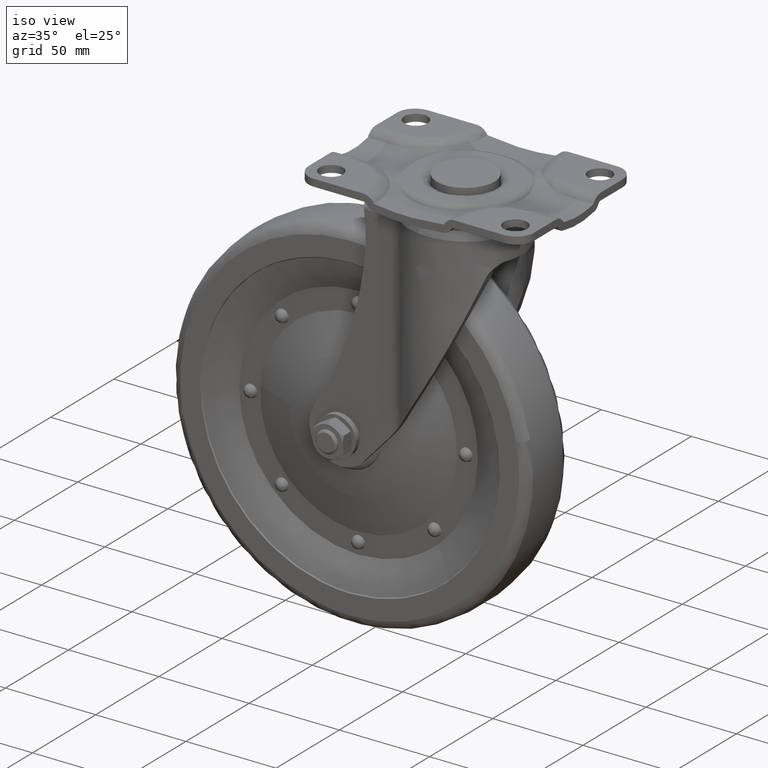
[diagram: clean part render]
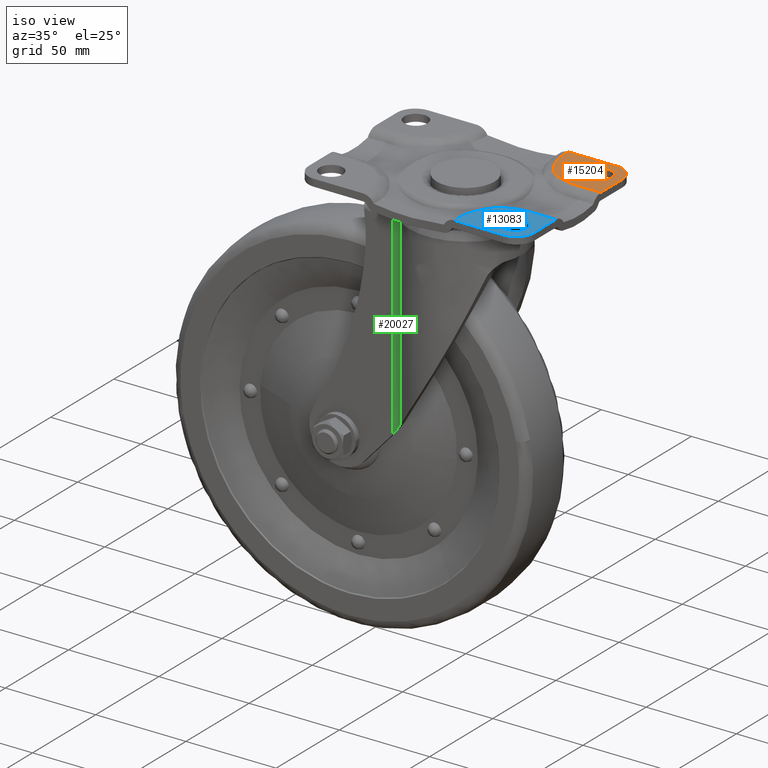
[diagram: same view with three faces highlighted in distinct colors, each labeled with its STEP entity id]
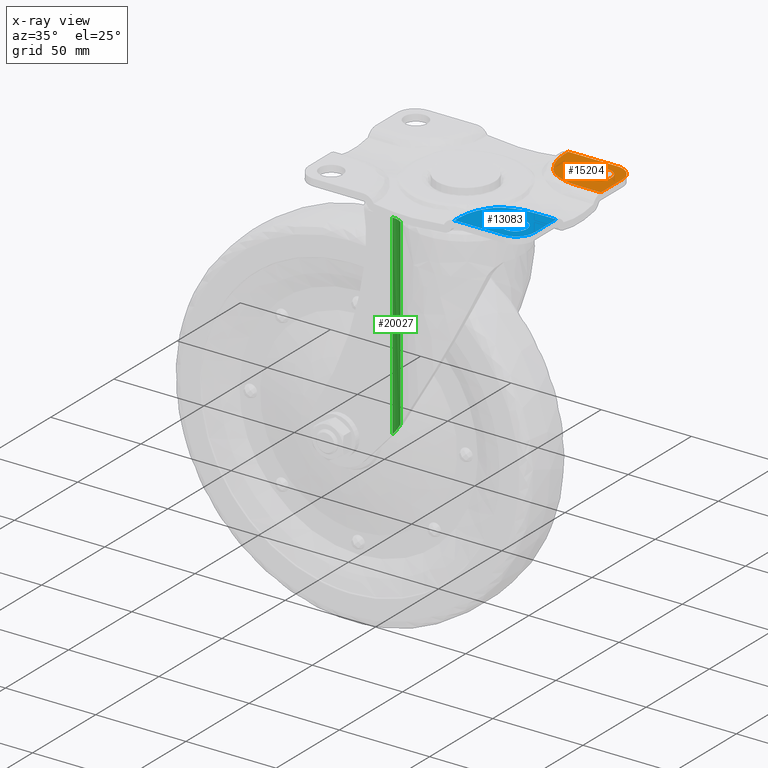
[diagram: x-ray of the same camera — body ghosted, the three highlighted faces saturated]
A machine part, iso view with three faces highlighted in distinct colors.
The next image is the same camera in x-ray (body ghosted, the three faces saturated) — at least one of them is partly hidden behind the body in this view.
Their STEP definitions:

[orange] entity #15204 — the highlighted face is a freeform B-spline surface patch.
#4957=CARTESIAN_POINT('',(51.056722481890560,27.000247500092939,0.270766999999838));
#4958=VERTEX_POINT('',#4957);
#4964=CARTESIAN_POINT('',(57.499999999999993,33.500000000000000,0.270766999999839));
#4965=VERTEX_POINT('',#4964);
#4966=CARTESIAN_POINT('',(51.056722481890560,27.000247500092936,0.270766999999839));
#4967=CARTESIAN_POINT('',(57.500000000000000,27.056477132273866,0.270766999999839));
#4968=CARTESIAN_POINT('',(57.499999999999993,33.500000000000000,0.270766999999839));
#4976=(BOUNDED_CURVE()B_SPLINE_CURVE(2,(#4966,#4967,#4968),.UNSPECIFIED.,.F.,.U.)B_SPLINE_CURVE_WITH_KNOTS((3,3),(0.251539894366183,0.500000000000000),.UNSPECIFIED.)CURVE()GEOMETRIC_REPRESENTATION_ITEM()RATIONAL_B_SPLINE_CURVE((0.996414028028211,0.708910879656723,1.0))REPRESENTATION_ITEM(''));
#4977=EDGE_CURVE('',#4958,#4965,#4976,.T.);
#4979=CARTESIAN_POINT('',(50.943277518109440,39.999752499907061,0.270766999999838));
#4980=VERTEX_POINT('',#4979);
#4981=CARTESIAN_POINT('',(57.499999999999993,33.500000000000000,0.270766999999839));
#4982=CARTESIAN_POINT('',(57.500000000000000,40.0,0.270766999999839));
#4983=CARTESIAN_POINT('',(51.0,40.0,0.270766999999839));
#4984=CARTESIAN_POINT('',(50.971638219089847,39.999999999999993,0.270766999999838));
#4985=CARTESIAN_POINT('',(50.943277518109433,39.999752499907061,0.270766999999838));
#4993=(BOUNDED_CURVE()B_SPLINE_CURVE(2,(#4981,#4982,#4983,#4984,#4985),.UNSPECIFIED.,.F.,.U.)B_SPLINE_CURVE_WITH_KNOTS((3,2,3),(0.500000000000000,0.750000000000000,0.751539894366183),.UNSPECIFIED.)CURVE()GEOMETRIC_REPRESENTATION_ITEM()RATIONAL_B_SPLINE_CURVE((1.0,0.707106781186547,1.0,0.998195901529824,0.996414028028211))REPRESENTATION_ITEM(''));
#4994=EDGE_CURVE('',#4965,#4980,#4993,.T.);
#5070=CARTESIAN_POINT('',(44.500000000000000,33.500000000000000,0.270766999999839));
#5071=VERTEX_POINT('',#5070);
#5072=CARTESIAN_POINT('',(50.943277518109433,39.999752499907061,0.270766999999839));
#5073=CARTESIAN_POINT('',(44.499999999999993,39.943522867726152,0.270766999999839));
#5074=CARTESIAN_POINT('',(44.500000000000000,33.500000000000000,0.270766999999839));
#5082=(BOUNDED_CURVE()B_SPLINE_CURVE(2,(#5072,#5073,#5074),.UNSPECIFIED.,.F.,.U.)B_SPLINE_CURVE_WITH_KNOTS((3,3),(0.751539894366183,1.0),.UNSPECIFIED.)CURVE()GEOMETRIC_REPRESENTATION_ITEM()RATIONAL_B_SPLINE_CURVE((0.996414028028210,0.708910879656723,1.0))REPRESENTATION_ITEM(''));
#5083=EDGE_CURVE('',#4980,#5071,#5082,.T.);
#5085=CARTESIAN_POINT('',(44.500000000000000,33.500000000000000,0.270766999999839));
#5086=CARTESIAN_POINT('',(44.500000000000000,27.000000000000014,0.270766999999839));
#5087=CARTESIAN_POINT('',(51.0,27.0,0.270766999999839));
#5088=CARTESIAN_POINT('',(51.028361780910167,27.000000000000007,0.270766999999839));
#5089=CARTESIAN_POINT('',(51.056722481890567,27.000247500092939,0.270766999999839));
#5097=(BOUNDED_CURVE()B_SPLINE_CURVE(2,(#5085,#5086,#5087,#5088,#5089),.UNSPECIFIED.,.F.,.U.)B_SPLINE_CURVE_WITH_KNOTS((3,2,3),(0.0,0.250000000000000,0.251539894366183),.UNSPECIFIED.)CURVE()GEOMETRIC_REPRESENTATION_ITEM()RATIONAL_B_SPLINE_CURVE((1.0,0.707106781186547,1.0,0.998195901529824,0.996414028028211))REPRESENTATION_ITEM(''));
#5098=EDGE_CURVE('',#5071,#4958,#5097,.T.);
#14623=CARTESIAN_POINT('',(62.500000000000000,35.0,0.270766999999839));
#14624=VERTEX_POINT('',#14623);
#14630=CARTESIAN_POINT('',(62.500000000000000,17.778358479652951,0.270766999999808));
#14631=VERTEX_POINT('',#14630);
#14632=CARTESIAN_POINT('',(62.500000000000000,17.778358479652951,0.270766999999808));
#14633=CARTESIAN_POINT('',(62.500000000000000,35.0,0.270766999999839));
#14634=QUASI_UNIFORM_CURVE('',1,(#14632,#14633),.UNSPECIFIED.,.F.,.U.);
#14635=EDGE_CURVE('',#14631,#14624,#14634,.T.);
#14669=CARTESIAN_POINT('',(52.500000000000000,45.0,0.270766999999839));
#14670=VERTEX_POINT('',#14669);
#14676=CARTESIAN_POINT('',(62.500000000000000,35.0,0.270766999999839));
#14677=CARTESIAN_POINT('',(62.500000000000000,45.000000000000014,0.270766999999838));
#14678=CARTESIAN_POINT('',(52.500000000000000,45.000000000000007,0.270766999999839));
#14686=(BOUNDED_CURVE()B_SPLINE_CURVE(2,(#14676,#14677,#14678),.UNSPECIFIED.,.F.,.U.)CURVE()GEOMETRIC_REPRESENTATION_ITEM()QUASI_UNIFORM_CURVE()RATIONAL_B_SPLINE_CURVE((1.0,0.707106781186548,1.0))REPRESENTATION_ITEM(''));
#14687=EDGE_CURVE('',#14624,#14670,#14686,.T.);
#14699=CARTESIAN_POINT('',(25.362136062153350,45.0,0.270766999999808));
#14700=VERTEX_POINT('',#14699);
#14701=CARTESIAN_POINT('',(52.500000000000000,45.0,0.270766999999839));
#14702=CARTESIAN_POINT('',(25.362136062153350,45.0,0.270766999999808));
#14703=QUASI_UNIFORM_CURVE('',1,(#14701,#14702),.UNSPECIFIED.,.F.,.U.);
#14704=EDGE_CURVE('',#14670,#14700,#14703,.T.);
#14812=CARTESIAN_POINT('',(37.332034002519052,20.326663851140299,0.270766999999808));
#14813=VERTEX_POINT('',#14812);
#14828=CARTESIAN_POINT('',(49.000605015543201,17.778358479652901,0.270766999999808));
#14829=VERTEX_POINT('',#14828);
#14843=CARTESIAN_POINT('',(37.332034002519052,20.326663851140250,0.270766999999808));
#14844=CARTESIAN_POINT('',(37.795497823927207,20.128824963173940,0.270766999999808));
#14845=CARTESIAN_POINT('',(38.261875680192126,19.938736079477160,0.270766999999810));
#14846=CARTESIAN_POINT('',(39.201969906470453,19.578075413175458,0.270766999999810));
#14847=CARTESIAN_POINT('',(39.675680084500307,19.407487162716968,0.270766999999810));
#14848=CARTESIAN_POINT('',(40.392548979131448,19.168369562713131,0.270766999999810));
#14849=CARTESIAN_POINT('',(40.632705698431103,19.091407608393819,0.270766999999810));
#14850=CARTESIAN_POINT('',(41.113722977102512,18.943786707474370,0.270766999999810));
#14851=CARTESIAN_POINT('',(41.354725433468893,18.873076140729250,0.270766999999810));
#14852=CARTESIAN_POINT('',(42.079253871598723,18.670492789019129,0.270766999999810));
#14853=CARTESIAN_POINT('',(42.564303007522803,18.548181441760850,0.270766999999810));
#14854=CARTESIAN_POINT('',(44.025758305156693,18.220844505472680,0.270766999999810));
#14855=CARTESIAN_POINT('',(45.008482312587553,18.055478518774621,0.270766999999810));
#14856=CARTESIAN_POINT('',(46.991378237865383,17.834273941135880,0.270766999999810));
#14857=CARTESIAN_POINT('',(47.991537910097193,17.778358479652720,0.270766999999808));
#14858=CARTESIAN_POINT('',(49.000605015543201,17.778358479652901,0.270766999999808));
#14859=B_SPLINE_CURVE_WITH_KNOTS('',3,(#14843,#14844,#14845,#14846,#14847,#14848,#14849,#14850,#14851,#14852,#14853,#14854,#14855,#14856,#14857,#14858),.UNSPECIFIED.,.F.,.U.,(4,2,2,2,2,2,2,4),(0.0,0.125000000000000,0.250000000000000,0.312500000000000,0.375000000000000,0.500000000000000,0.750000000000000,1.0),.UNSPECIFIED.);
#14860=EDGE_CURVE('',#14813,#14829,#14859,.T.);
#14953=CARTESIAN_POINT('',(30.737506021626601,25.489937306058451,0.270766999999809));
#14954=VERTEX_POINT('',#14953);
#14970=CARTESIAN_POINT('',(30.737506021626601,25.489937306058451,0.270766999999809));
#14971=CARTESIAN_POINT('',(30.945995480822670,25.200695248073629,0.270766999999808));
#14972=CARTESIAN_POINT('',(31.163448865777209,24.918790634215540,0.270766999999810));
#14973=CARTESIAN_POINT('',(31.504228316286799,24.507884067228868,0.270766999999810));
#14974=CARTESIAN_POINT('',(31.620252411317669,24.372905067637902,0.270766999999810));
#14975=CARTESIAN_POINT('',(31.857325117692518,24.107059899006419,0.270766999999810));
#14976=CARTESIAN_POINT('',(31.978562448117771,23.976004651679538,0.270766999999810));
#14977=CARTESIAN_POINT('',(32.594349794318447,23.334675435995820,0.270766999999810));
#14978=CARTESIAN_POINT('',(33.118881304318421,22.865106630202352,0.270766999999810));
#14979=CARTESIAN_POINT('',(34.228459617263098,22.008475341891749,0.270766999999810));
#14980=CARTESIAN_POINT('',(34.813423937875697,21.621300403272620,0.270766999999810));
#14981=CARTESIAN_POINT('',(35.731251278020437,21.095593107255940,0.270766999999810));
#14982=CARTESIAN_POINT('',(36.043931123343548,20.929497916188321,0.270766999999810));
#14983=CARTESIAN_POINT('',(36.681693979633529,20.614399525869960,0.270766999999810));
#14984=CARTESIAN_POINT('',(37.004918731570768,20.466299607917549,0.270766999999807));
#14985=CARTESIAN_POINT('',(37.332034002519052,20.326663851140299,0.270766999999808));
#14986=B_SPLINE_CURVE_WITH_KNOTS('',3,(#14970,#14971,#14972,#14973,#14974,#14975,#14976,#14977,#14978,#14979,#14980,#14981,#14982,#14983,#14984,#14985),.UNSPECIFIED.,.F.,.U.,(4,2,2,2,2,2,2,4),(0.0,0.124999999999999,0.187499999999999,0.249999999999999,0.499999999999999,0.749999999999999,0.875000000000000,1.0),.UNSPECIFIED.);
#14987=EDGE_CURVE('',#14954,#14813,#14986,.T.);
#15090=CARTESIAN_POINT('',(25.362136062153350,41.364142405412203,0.270766999999808));
#15091=VERTEX_POINT('',#15090);
#15107=CARTESIAN_POINT('',(25.362136062153350,41.364142405412203,0.270766999999808));
#15108=CARTESIAN_POINT('',(25.362136062153141,39.934674981561663,0.270766999999808));
#15109=CARTESIAN_POINT('',(25.479870982809761,38.516919594063367,0.270766999999810));
#15110=CARTESIAN_POINT('',(25.746202977526430,36.935262920734523,0.270766999999810));
#15111=CARTESIAN_POINT('',(25.777662452465218,36.759709018912922,0.270766999999810));
#15112=CARTESIAN_POINT('',(25.844333218519331,36.408974438500380,0.270766999999810));
#15113=CARTESIAN_POINT('',(25.879575490130740,36.233659171841893,0.270766999999810));
#15114=CARTESIAN_POINT('',(25.990562467079990,35.710085456439671,0.270766999999810));
#15115=CARTESIAN_POINT('',(26.071638829235962,35.363752603431642,0.270766999999810));
#15116=CARTESIAN_POINT('',(26.335680239565530,34.332733150538530,0.270766999999810));
#15117=CARTESIAN_POINT('',(26.539445438901112,33.656020989969562,0.270766999999810));
#15118=CARTESIAN_POINT('',(27.231020272392769,31.656662260151680,0.270766999999810));
#15119=CARTESIAN_POINT('',(27.799272320055390,30.364856002588681,0.270766999999810));
#15120=CARTESIAN_POINT('',(28.634451367111168,28.797969000570411,0.270766999999810));
#15121=CARTESIAN_POINT('',(28.807754410316051,28.486916683038050,0.270766999999810));
#15122=CARTESIAN_POINT('',(29.166342243384179,27.869723211492381,0.270766999999810));
#15123=CARTESIAN_POINT('',(29.351016677740290,27.564626167673548,0.270766999999810));
#15124=CARTESIAN_POINT('',(29.920280175877409,26.659247834543031,0.270766999999810));
#15125=CARTESIAN_POINT('',(30.320169068463589,26.068918131591190,0.270766999999808));
#15126=CARTESIAN_POINT('',(30.737506021626551,25.489937306058401,0.270766999999808));
#15127=B_SPLINE_CURVE_WITH_KNOTS('',3,(#15107,#15108,#15109,#15110,#15111,#15112,#15113,#15114,#15115,#15116,#15117,#15118,#15119,#15120,#15121,#15122,#15123,#15124,#15125,#15126),.UNSPECIFIED.,.F.,.U.,(4,2,2,2,2,2,2,2,2,4),(0.0,0.250000000000009,0.281250000000009,0.312500000000010,0.375000000000009,0.500000000000008,0.750000000000004,0.812500000000003,0.875000000000002,1.0),.UNSPECIFIED.);
#15128=EDGE_CURVE('',#15091,#14954,#15127,.T.);
#15149=CARTESIAN_POINT('',(49.000605015543201,17.778358479652901,0.270766999999808));
#15150=CARTESIAN_POINT('',(62.500000000000000,17.778358479652951,0.270766999999808));
#15151=QUASI_UNIFORM_CURVE('',1,(#15149,#15150),.UNSPECIFIED.,.F.,.U.);
#15152=EDGE_CURVE('',#14829,#14631,#15151,.T.);
#15172=CARTESIAN_POINT('',(25.362136062153350,45.0,0.270766999999808));
#15173=CARTESIAN_POINT('',(25.362136062153350,41.364142405412203,0.270766999999808));
#15174=QUASI_UNIFORM_CURVE('',1,(#15172,#15173),.UNSPECIFIED.,.F.,.U.);
#15175=EDGE_CURVE('',#14700,#15091,#15174,.T.);
#15183=CARTESIAN_POINT('',(23.507099830438300,46.359720941180512,0.270766999999808));
#15184=CARTESIAN_POINT('',(64.355037227830181,46.359720941180512,0.270766999999808));
#15185=CARTESIAN_POINT('',(23.507099830438300,16.418636808331058,0.270766999999808));
#15186=CARTESIAN_POINT('',(64.355037227830181,16.418636808331058,0.270766999999808));
#15187=B_SPLINE_SURFACE_WITH_KNOTS('',1,1,((#15183,#15185),(#15184,#15186)),.UNSPECIFIED.,.F.,.F.,.U.,(2,2),(2,2),(0.0,40.847937397391888),(0.0,29.941084132849451),.UNSPECIFIED.);
#15188=ORIENTED_EDGE('',*,*,#14704,.T.);
#15189=ORIENTED_EDGE('',*,*,#15175,.T.);
#15190=ORIENTED_EDGE('',*,*,#15128,.T.);
#15191=ORIENTED_EDGE('',*,*,#14987,.T.);
#15192=ORIENTED_EDGE('',*,*,#14860,.T.);
#15193=ORIENTED_EDGE('',*,*,#15152,.T.);
#15194=ORIENTED_EDGE('',*,*,#14635,.T.);
#15195=ORIENTED_EDGE('',*,*,#14687,.T.);
#15196=EDGE_LOOP('',(#15188,#15189,#15190,#15191,#15192,#15193,#15194,#15195));
#15197=FACE_OUTER_BOUND('',#15196,.T.);
#15198=ORIENTED_EDGE('',*,*,#4994,.F.);
#15199=ORIENTED_EDGE('',*,*,#4977,.F.);
#15200=ORIENTED_EDGE('',*,*,#5098,.F.);
#15201=ORIENTED_EDGE('',*,*,#5083,.F.);
#15202=EDGE_LOOP('',(#15198,#15199,#15200,#15201));
#15203=FACE_BOUND('',#15202,.T.);
#15204=ADVANCED_FACE('',(#15197,#15203),#15187,.F.);

[blue] entity #13083 — the highlighted face is a freeform B-spline surface patch.
#5139=CARTESIAN_POINT('',(51.056722481890560,-39.999752499907061,0.270766999999838));
#5140=VERTEX_POINT('',#5139);
#5146=CARTESIAN_POINT('',(57.499999999999993,-33.500000000000000,0.270766999999839));
#5147=VERTEX_POINT('',#5146);
#5148=CARTESIAN_POINT('',(51.056722481890560,-39.999752499907068,0.270766999999839));
#5149=CARTESIAN_POINT('',(57.500000000000000,-39.943522867726145,0.270766999999839));
#5150=CARTESIAN_POINT('',(57.499999999999993,-33.500000000000000,0.270766999999839));
#5158=(BOUNDED_CURVE()B_SPLINE_CURVE(2,(#5148,#5149,#5150),.UNSPECIFIED.,.F.,.U.)B_SPLINE_CURVE_WITH_KNOTS((3,3),(0.251539894366183,0.500000000000000),.UNSPECIFIED.)CURVE()GEOMETRIC_REPRESENTATION_ITEM()RATIONAL_B_SPLINE_CURVE((0.996414028028211,0.708910879656723,1.0))REPRESENTATION_ITEM(''));
#5159=EDGE_CURVE('',#5140,#5147,#5158,.T.);
#5161=CARTESIAN_POINT('',(50.943277518109440,-27.000247500092939,0.270766999999838));
#5162=VERTEX_POINT('',#5161);
#5163=CARTESIAN_POINT('',(57.499999999999993,-33.500000000000000,0.270766999999839));
#5164=CARTESIAN_POINT('',(57.500000000000000,-27.000000000000014,0.270766999999839));
#5165=CARTESIAN_POINT('',(51.0,-27.0,0.270766999999839));
#5166=CARTESIAN_POINT('',(50.971638219089847,-27.0,0.270766999999838));
#5167=CARTESIAN_POINT('',(50.943277518109433,-27.000247500092929,0.270766999999838));
#5175=(BOUNDED_CURVE()B_SPLINE_CURVE(2,(#5163,#5164,#5165,#5166,#5167),.UNSPECIFIED.,.F.,.U.)B_SPLINE_CURVE_WITH_KNOTS((3,2,3),(0.500000000000000,0.750000000000000,0.751539894366183),.UNSPECIFIED.)CURVE()GEOMETRIC_REPRESENTATION_ITEM()RATIONAL_B_SPLINE_CURVE((1.0,0.707106781186547,1.0,0.998195901529824,0.996414028028211))REPRESENTATION_ITEM(''));
#5176=EDGE_CURVE('',#5147,#5162,#5175,.T.);
#5252=CARTESIAN_POINT('',(44.500000000000000,-33.500000000000000,0.270766999999839));
#5253=VERTEX_POINT('',#5252);
#5254=CARTESIAN_POINT('',(50.943277518109433,-27.000247500092936,0.270766999999839));
#5255=CARTESIAN_POINT('',(44.499999999999993,-27.056477132273862,0.270766999999839));
#5256=CARTESIAN_POINT('',(44.500000000000000,-33.500000000000000,0.270766999999839));
#5264=(BOUNDED_CURVE()B_SPLINE_CURVE(2,(#5254,#5255,#5256),.UNSPECIFIED.,.F.,.U.)B_SPLINE_CURVE_WITH_KNOTS((3,3),(0.751539894366183,1.0),.UNSPECIFIED.)CURVE()GEOMETRIC_REPRESENTATION_ITEM()RATIONAL_B_SPLINE_CURVE((0.996414028028210,0.708910879656723,1.0))REPRESENTATION_ITEM(''));
#5265=EDGE_CURVE('',#5162,#5253,#5264,.T.);
#5267=CARTESIAN_POINT('',(44.500000000000000,-33.500000000000000,0.270766999999839));
#5268=CARTESIAN_POINT('',(44.500000000000000,-40.0,0.270766999999839));
#5269=CARTESIAN_POINT('',(51.0,-40.0,0.270766999999839));
#5270=CARTESIAN_POINT('',(51.028361780910167,-40.0,0.270766999999839));
#5271=CARTESIAN_POINT('',(51.056722481890567,-39.999752499907061,0.270766999999839));
#5279=(BOUNDED_CURVE()B_SPLINE_CURVE(2,(#5267,#5268,#5269,#5270,#5271),.UNSPECIFIED.,.F.,.U.)B_SPLINE_CURVE_WITH_KNOTS((3,2,3),(0.0,0.250000000000000,0.251539894366183),.UNSPECIFIED.)CURVE()GEOMETRIC_REPRESENTATION_ITEM()RATIONAL_B_SPLINE_CURVE((1.0,0.707106781186547,1.0,0.998195901529824,0.996414028028211))REPRESENTATION_ITEM(''));
#5280=EDGE_CURVE('',#5253,#5140,#5279,.T.);
#11492=CARTESIAN_POINT('',(30.737506412930099,-25.489936763194549,0.270766999999807));
#11493=VERTEX_POINT('',#11492);
#11540=CARTESIAN_POINT('',(25.362136062153301,-41.364142405412949,0.270766999999808));
#11541=VERTEX_POINT('',#11540);
#11555=CARTESIAN_POINT('',(30.737506412930099,-25.489936763194549,0.270766999999807));
#11556=CARTESIAN_POINT('',(30.528555543059490,-25.779818935366961,0.270766999999808));
#11557=CARTESIAN_POINT('',(30.323936159503720,-26.072590656853791,0.270766999999810));
#11558=CARTESIAN_POINT('',(29.925089109989511,-26.662970073147441,0.270766999999810));
#11559=CARTESIAN_POINT('',(29.730722666167139,-26.960765191183601,0.270766999999810));
#11560=CARTESIAN_POINT('',(29.163715681294740,-27.862441327959392,0.270766999999810));
#11561=CARTESIAN_POINT('',(28.807198101639379,-28.474628902122092,0.270766999999810));
#11562=CARTESIAN_POINT('',(27.807817103336600,-30.347344130262510,0.270766999999810));
#11563=CARTESIAN_POINT('',(27.235062330755682,-31.643991783533931,0.270766999999810));
#11564=CARTESIAN_POINT('',(26.709674779522590,-33.164009435406250,0.270766999999810));
#11565=CARTESIAN_POINT('',(26.652891898444668,-33.333939608864142,0.270766999999810));
#11566=CARTESIAN_POINT('',(26.543027218060640,-33.674447833672360,0.270766999999810));
#11567=CARTESIAN_POINT('',(26.383791148149449,-34.186103218429501,0.270766999999810));
#11568=CARTESIAN_POINT('',(26.241166707888429,-34.700426308039390,0.270766999999810));
#11569=CARTESIAN_POINT('',(25.977911759021680,-35.732604550003387,0.270766999999810));
#11570=CARTESIAN_POINT('',(25.831714900331900,-36.425429775565362,0.270766999999810));
#11571=CARTESIAN_POINT('',(25.480387113682301,-38.517919210786857,0.270766999999810));
#11572=CARTESIAN_POINT('',(25.362136062153262,-39.931535685988152,0.270766999999807));
#11573=CARTESIAN_POINT('',(25.362136062153301,-41.364142405412949,0.270766999999808));
#11574=B_SPLINE_CURVE_WITH_KNOTS('',3,(#11555,#11556,#11557,#11558,#11559,#11560,#11561,#11562,#11563,#11564,#11565,#11566,#11567,#11568,#11569,#11570,#11571,#11572,#11573),.UNSPECIFIED.,.F.,.U.,(4,2,2,2,2,2,1,2,2,4),(0.0,0.062500000000000,0.125000000000000,0.250000000000001,0.500000000000001,0.531250000000001,0.562500000000001,0.625000000000002,0.750000000000001,1.0),.UNSPECIFIED.);
#11575=EDGE_CURVE('',#11493,#11541,#11574,.T.);
#11658=CARTESIAN_POINT('',(37.332034823701797,-20.326663311212751,0.270766999999809));
#11659=VERTEX_POINT('',#11658);
#11693=CARTESIAN_POINT('',(37.332034823701797,-20.326663311212751,0.270766999999809));
#11694=CARTESIAN_POINT('',(36.025224079631208,-20.884501788542440,0.270766999999807));
#11695=CARTESIAN_POINT('',(34.796642069252243,-21.570327948035150,0.270766999999810));
#11696=CARTESIAN_POINT('',(33.536967001100187,-22.542267726239139,0.270766999999810));
#11697=CARTESIAN_POINT('',(33.398700301699442,-22.653037768076182,0.270766999999810));
#11698=CARTESIAN_POINT('',(33.125663135869409,-22.880297933530692,0.270766999999810));
#11699=CARTESIAN_POINT('',(32.990724461153171,-22.996951831320310,0.270766999999810));
#11700=CARTESIAN_POINT('',(32.593946343668058,-23.353254106403391,0.270766999999810));
#11701=CARTESIAN_POINT('',(32.339383845897743,-23.599851737918979,0.270766999999810));
#11702=CARTESIAN_POINT('',(31.604738625740431,-24.366080674971482,0.270766999999810));
#11703=CARTESIAN_POINT('',(31.153870829102459,-24.912305181901989,0.270766999999808));
#11704=CARTESIAN_POINT('',(30.737506412930198,-25.489936763194649,0.270766999999808));
#11705=B_SPLINE_CURVE_WITH_KNOTS('',3,(#11693,#11694,#11695,#11696,#11697,#11698,#11699,#11700,#11701,#11702,#11703,#11704),.UNSPECIFIED.,.F.,.U.,(4,2,2,2,2,4),(0.0,0.500000000000001,0.562500000000001,0.625000000000001,0.750000000000001,1.0),.UNSPECIFIED.);
#11706=EDGE_CURVE('',#11659,#11493,#11705,.T.);
#11799=CARTESIAN_POINT('',(49.000605059795006,-17.778358396640002,0.270766999999808));
#11800=VERTEX_POINT('',#11799);
#11832=CARTESIAN_POINT('',(49.000605059795006,-17.778358396640002,0.270766999999808));
#11833=CARTESIAN_POINT('',(48.746814202355772,-17.778358396640002,0.270766999999808));
#11834=CARTESIAN_POINT('',(48.493083642589554,-17.781894506141541,0.270766999999810));
#11835=CARTESIAN_POINT('',(47.985743924130993,-17.796086195236349,0.270766999999810));
#11836=CARTESIAN_POINT('',(47.732340931066076,-17.806743441139179,0.270766999999810));
#11837=CARTESIAN_POINT('',(46.975297644817807,-17.849216985584139,0.270766999999810));
#11838=CARTESIAN_POINT('',(46.473909129949291,-17.891557236191709,0.270766999999810));
#11839=CARTESIAN_POINT('',(44.979426084822663,-18.059640086005309,0.270766999999810));
#11840=CARTESIAN_POINT('',(43.996032689711193,-18.226523814407830,0.270766999999810));
#11841=CARTESIAN_POINT('',(42.053600198624942,-18.663574376966771,0.270766999999810));
#11842=CARTESIAN_POINT('',(41.094609401994028,-18.933946041745060,0.270766999999810));
#11843=CARTESIAN_POINT('',(39.672438051689070,-19.408692465885569,0.270766999999810));
#11844=CARTESIAN_POINT('',(39.201087009215492,-19.578417348689971,0.270766999999810));
#11845=CARTESIAN_POINT('',(38.263186447536761,-19.938229689001929,0.270766999999810));
#11846=CARTESIAN_POINT('',(37.796641513449678,-20.128336591340560,0.270766999999807));
#11847=CARTESIAN_POINT('',(37.332034823701797,-20.326663311212751,0.270766999999808));
#11848=B_SPLINE_CURVE_WITH_KNOTS('',3,(#11832,#11833,#11834,#11835,#11836,#11837,#11838,#11839,#11840,#11841,#11842,#11843,#11844,#11845,#11846,#11847),.UNSPECIFIED.,.F.,.U.,(4,2,2,2,2,2,2,4),(0.0,0.062500000000001,0.125000000000002,0.250000000000001,0.500000000000001,0.750000000000000,0.875000000000000,1.0),.UNSPECIFIED.);
#11849=EDGE_CURVE('',#11800,#11659,#11848,.T.);
#12700=CARTESIAN_POINT('',(25.362136062153350,-45.0,0.270766999999808));
#12701=VERTEX_POINT('',#12700);
#12715=CARTESIAN_POINT('',(25.362136062153301,-41.364142405412949,0.270766999999808));
#12716=CARTESIAN_POINT('',(25.362136062153350,-45.0,0.270766999999808));
#12717=QUASI_UNIFORM_CURVE('',1,(#12715,#12716),.UNSPECIFIED.,.F.,.U.);
#12718=EDGE_CURVE('',#11541,#12701,#12717,.T.);
#12738=CARTESIAN_POINT('',(62.500000000000000,-17.778358396640002,0.270766999999808));
#12739=VERTEX_POINT('',#12738);
#12740=CARTESIAN_POINT('',(62.500000000000000,-17.778358396640002,0.270766999999808));
#12741=CARTESIAN_POINT('',(49.000605059795006,-17.778358396640002,0.270766999999808));
#12742=QUASI_UNIFORM_CURVE('',1,(#12740,#12741),.UNSPECIFIED.,.F.,.U.);
#12743=EDGE_CURVE('',#12739,#11800,#12742,.T.);
#13038=CARTESIAN_POINT('',(23.507099830438250,-16.418637451312989,0.270766999999808));
#13039=CARTESIAN_POINT('',(64.355037227830195,-16.418637451312989,0.270766999999808));
#13040=CARTESIAN_POINT('',(23.507099830438250,-46.359721675468329,0.270766999999808));
#13041=CARTESIAN_POINT('',(64.355037227830195,-46.359721675468329,0.270766999999808));
#13042=B_SPLINE_SURFACE_WITH_KNOTS('',1,1,((#13038,#13040),(#13039,#13041)),.UNSPECIFIED.,.F.,.F.,.U.,(2,2),(2,2),(0.0,40.847937397391952),(0.0,29.941084224155340),.UNSPECIFIED.);
#13043=CARTESIAN_POINT('',(62.500000000000000,-35.0,0.270766999999839));
#13044=VERTEX_POINT('',#13043);
#13045=CARTESIAN_POINT('',(62.500000000000000,-35.0,0.270766999999839));
#13046=CARTESIAN_POINT('',(62.500000000000000,-17.778358396640002,0.270766999999808));
#13047=QUASI_UNIFORM_CURVE('',1,(#13045,#13046),.UNSPECIFIED.,.F.,.U.);
#13048=EDGE_CURVE('',#13044,#12739,#13047,.T.);
#13049=ORIENTED_EDGE('',*,*,#13048,.T.);
#13050=ORIENTED_EDGE('',*,*,#12743,.T.);
#13051=ORIENTED_EDGE('',*,*,#11849,.T.);
#13052=ORIENTED_EDGE('',*,*,#11706,.T.);
#13053=ORIENTED_EDGE('',*,*,#11575,.T.);
#13054=ORIENTED_EDGE('',*,*,#12718,.T.);
#13055=CARTESIAN_POINT('',(52.500000000000000,-45.0,0.270766999999839));
#13056=VERTEX_POINT('',#13055);
#13057=CARTESIAN_POINT('',(25.362136062153350,-45.0,0.270766999999808));
#13058=CARTESIAN_POINT('',(52.500000000000000,-45.0,0.270766999999839));
#13059=QUASI_UNIFORM_CURVE('',1,(#13057,#13058),.UNSPECIFIED.,.F.,.U.);
#13060=EDGE_CURVE('',#12701,#13056,#13059,.T.);
#13061=ORIENTED_EDGE('',*,*,#13060,.T.);
#13062=CARTESIAN_POINT('',(52.500000000000000,-45.000000000000007,0.270766999999839));
#13063=CARTESIAN_POINT('',(62.500000000000000,-45.000000000000014,0.270766999999838));
#13064=CARTESIAN_POINT('',(62.500000000000000,-35.0,0.270766999999839));
#13072=(BOUNDED_CURVE()B_SPLINE_CURVE(2,(#13062,#13063,#13064),.UNSPECIFIED.,.F.,.U.)CURVE()GEOMETRIC_REPRESENTATION_ITEM()QUASI_UNIFORM_CURVE()RATIONAL_B_SPLINE_CURVE((1.0,0.707106781186548,1.0))REPRESENTATION_ITEM(''));
#13073=EDGE_CURVE('',#13056,#13044,#13072,.T.);
#13074=ORIENTED_EDGE('',*,*,#13073,.T.);
#13075=EDGE_LOOP('',(#13049,#13050,#13051,#13052,#13053,#13054,#13061,#13074));
#13076=FACE_OUTER_BOUND('',#13075,.T.);
#13077=ORIENTED_EDGE('',*,*,#5176,.F.);
#13078=ORIENTED_EDGE('',*,*,#5159,.F.);
#13079=ORIENTED_EDGE('',*,*,#5280,.F.);
#13080=ORIENTED_EDGE('',*,*,#5265,.F.);
#13081=EDGE_LOOP('',(#13077,#13078,#13079,#13080));
#13082=FACE_BOUND('',#13081,.T.);
#13083=ADVANCED_FACE('',(#13076,#13082),#13042,.F.);

[green] entity #20027 — the highlighted face is a freeform B-spline surface patch.
#19961=CARTESIAN_POINT('',(-24.390285280907239,-23.639654639928811,-131.215919057360510));
#19962=CARTESIAN_POINT('',(-24.390285280907239,-23.639654639928811,-16.785600623566040));
#19963=CARTESIAN_POINT('',(-20.825540288817027,-23.519580079308376,-131.215919057360510));
#19964=CARTESIAN_POINT('',(-20.825540288817027,-23.519580079308376,-16.785600623566044));
#19965=CARTESIAN_POINT('',(-17.989443572822225,-25.682536430292824,-131.215919057360590));
#19966=CARTESIAN_POINT('',(-17.989443572822225,-25.682536430292824,-16.785600623566040));
#19974=(BOUNDED_SURFACE()B_SPLINE_SURFACE(1,2,((#19961,#19963,#19965),(#19962,#19964,#19966)),.UNSPECIFIED.,.F.,.F.,.U.)B_SPLINE_SURFACE_WITH_KNOTS((2,2),(3,3),(0.0,114.430318433794500),(0.0,6.920001440551911),.UNSPECIFIED.)GEOMETRIC_REPRESENTATION_ITEM()RATIONAL_B_SPLINE_SURFACE(((1.0,0.937992932691791,0.991761266922491),(1.0,0.937992932691791,0.991761266922491)))REPRESENTATION_ITEM('')SURFACE());
#19975=CARTESIAN_POINT('',(-18.236554349845449,-25.500011479313748,-19.576584000000050));
#19976=VERTEX_POINT('',#19975);
#19977=CARTESIAN_POINT('',(-18.236554349845449,-25.500011479313748,-121.115201933756790));
#19978=VERTEX_POINT('',#19977);
#19979=CARTESIAN_POINT('',(-18.236554349845449,-25.500011479313748,-19.576584000000050));
#19980=CARTESIAN_POINT('',(-18.236554349845449,-25.500011479313748,-121.115201933756790));
#19981=QUASI_UNIFORM_CURVE('',1,(#19979,#19980),.UNSPECIFIED.,.F.,.U.);
#19982=EDGE_CURVE('',#19976,#19978,#19981,.T.);
#19983=ORIENTED_EDGE('',*,*,#19982,.F.);
#19984=CARTESIAN_POINT('',(-24.087698549137851,-23.634044442205852,-19.576584000000050));
#19985=VERTEX_POINT('',#19984);
#19986=CARTESIAN_POINT('',(-18.236554349845441,-25.500011479313741,-19.576584000000050));
#19987=CARTESIAN_POINT('',(-20.861087180400897,-23.623054065149237,-19.576584000000050));
#19988=CARTESIAN_POINT('',(-24.087698549137858,-23.634044442205081,-19.576584000000050));
#19996=(BOUNDED_CURVE()B_SPLINE_CURVE(2,(#19986,#19987,#19988),.UNSPECIFIED.,.F.,.U.)CURVE()GEOMETRIC_REPRESENTATION_ITEM()QUASI_UNIFORM_CURVE()RATIONAL_B_SPLINE_CURVE((1.0,0.951685713058033,1.0))REPRESENTATION_ITEM(''));
#19997=EDGE_CURVE('',#19976,#19985,#19996,.T.);
#19998=ORIENTED_EDGE('',*,*,#19997,.T.);
#19999=CARTESIAN_POINT('',(-24.087698549137851,-23.634044442206552,-128.493008446205410));
#20000=VERTEX_POINT('',#19999);
#20001=CARTESIAN_POINT('',(-24.087698549137851,-23.634044442206552,-128.493008446205410));
#20002=CARTESIAN_POINT('',(-24.087698549137851,-23.634044442205852,-19.576584000000050));
#20003=QUASI_UNIFORM_CURVE('',1,(#20001,#20002),.UNSPECIFIED.,.F.,.U.);
#20004=EDGE_CURVE('',#20000,#19985,#20003,.T.);
#20005=ORIENTED_EDGE('',*,*,#20004,.F.);
#20006=CARTESIAN_POINT('',(-18.236554349845449,-25.500011479313748,-121.115201933756790));
#20007=CARTESIAN_POINT('',(-18.462917298011320,-25.338126053875150,-121.411083443452600));
#20008=CARTESIAN_POINT('',(-18.691747446570659,-25.188712230253959,-121.708920059474490));
#20009=CARTESIAN_POINT('',(-19.154033269239541,-24.912381116568660,-122.307982207755000));
#20010=CARTESIAN_POINT('',(-19.387490287877061,-24.785473466092739,-122.609209693505600));
#20011=CARTESIAN_POINT('',(-20.094513307216449,-24.436064423002311,-123.517441421354210));
#20012=CARTESIAN_POINT('',(-20.574700310364339,-24.244667746998211,-124.128953942987200));
#20013=CARTESIAN_POINT('',(-21.552151367014819,-23.938375278641420,-125.362443286794100));
#20014=CARTESIAN_POINT('',(-22.049421608027998,-23.823531485424031,-125.984431484617500));
#20015=CARTESIAN_POINT('',(-22.681910468525938,-23.727688676792908,-126.768246091001100));
#20016=CARTESIAN_POINT('',(-22.808990633858411,-23.710920120965831,-126.925370870018200));
#20017=CARTESIAN_POINT('',(-23.063432367371469,-23.682308964626849,-127.239245597819600));
#20018=CARTESIAN_POINT('',(-23.190893280719891,-23.670449439931819,-127.396118933809300));
#20019=CARTESIAN_POINT('',(-23.573997865529041,-23.642213252083909,-127.866545695696900));
#20020=CARTESIAN_POINT('',(-23.830363080359220,-23.633167914632210,-128.179905525943010));
#20021=CARTESIAN_POINT('',(-24.087698549137802,-23.634044442205099,-128.493008446205410));
#20022=B_SPLINE_CURVE_WITH_KNOTS('',3,(#20006,#20007,#20008,#20009,#20010,#20011,#20012,#20013,#20014,#20015,#20016,#20017,#20018,#20019,#20020,#20021),.UNSPECIFIED.,.F.,.U.,(4,2,2,2,2,2,2,4),(0.0,0.124999999999997,0.249999999999993,0.499999999999986,0.749999999999980,0.812499999999983,0.874999999999986,1.0),.UNSPECIFIED.);
#20023=EDGE_CURVE('',#19978,#20000,#20022,.T.);
#20024=ORIENTED_EDGE('',*,*,#20023,.F.);
#20025=EDGE_LOOP('',(#19983,#19998,#20005,#20024));
#20026=FACE_OUTER_BOUND('',#20025,.T.);
#20027=ADVANCED_FACE('',(#20026),#19974,.F.);